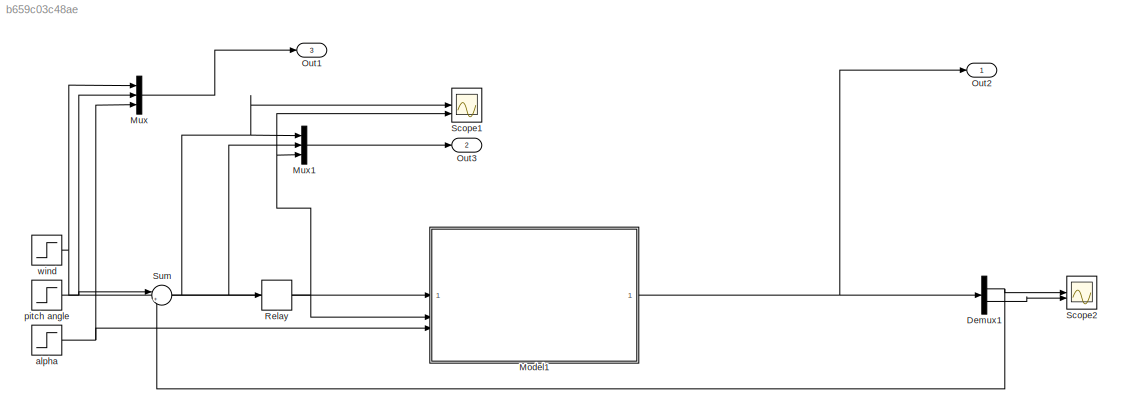
MODEL slx_b659c03c48ae
KIND model
CONFIG AbsTol = auto
CONFIG EnableMultiTasking = off
CONFIG FixedStep = auto
CONFIG MaxStep = auto
CONFIG MinStep = auto
CONFIG RelTol = 1e-3
CONFIG SampleTimeConstraint = Unconstrained
CONFIG SolverName = VariableStepAuto
CONFIG StartTime = 0.0
CONFIG StopTime = 400
BLOCK [Demux] Demux1
  Outputs = 2
BLOCK [ModelReference] Model1
  ModelNameDialog = transfer_function_structured.slx
  ModelReferenceVersion = 1.2
BLOCK [Mux] Mux
  DisplayOption = bar
  Inputs = 3
BLOCK [Mux] Mux1
  DisplayOption = bar
  Inputs = 3
BLOCK [Outport] Out1
  Port = 3
BLOCK [Outport] Out2
  SignalName = output
BLOCK [Outport] Out3
  Port = 2
BLOCK [Relay] Relay
  OffOutputValue = 1
  OffSwitchValue = -1
  OnOutputValue = -1
  OnSwitchValue = 1
BLOCK [Scope] Scope1
  Floating = off
  NumInputPorts = 3
  ScopeSpecificationString = Simulink.scopes.TimeScopeBlockCfg('CurrentConfiguration', extmgr.ConfigurationSet(extmgr.Configuration('Core','General UI',true),extmgr.Configuration('Core','Source UI',true),extmgr.Configuration('Sources','WiredSimulink',true,'DataLoggingVariableName','ScopeData1'),extmgr.Configuration('Visuals','Time Domain',true,'SerializedDisplays',{struct('MinYLimReal','-1.81496','MaxYLimReal','1.78967','YLab...<+3141ch>
BLOCK [Scope] Scope2
  Floating = off
  NumInputPorts = 2
  ScopeSpecificationString = Simulink.scopes.TimeScopeBlockCfg('CurrentConfiguration', extmgr.ConfigurationSet(extmgr.Configuration('Core','General UI',true),extmgr.Configuration('Core','Source UI',true),extmgr.Configuration('Sources','WiredSimulink',true),extmgr.Configuration('Visuals','Time Domain',true,'SerializedDisplays',{struct('MinYLimReal','-1.78967','MaxYLimReal','1.81496','YLabelReal','','MinYLimMag','0.00000','MaxY...<+2046ch>
BLOCK [Sum] Sum
  Inputs = |+-
BLOCK [Step] alpha
  After = 0
  SampleTime = 0
  Time = simP.step_time
BLOCK [Step] pitch angle
  After = 0
  SampleTime = 0
  Time = simP.step_time
BLOCK [Step] wind
  After = 0
  SampleTime = 0
  Time = simP.step_time
NET Demux1:1 -> Scope2:1, Sum:2
LINE Demux1:2 -> Scope2:2
NET Model1:1 -> Demux1:1, Out2:1
LINE Mux1:1 -> Out3:1
LINE Mux:1 -> Out1:1
NET Relay:1 -> Model1:2, Mux1:3, Scope1:3
NET Sum:1 -> Mux1:1, Mux1:2, Relay:1, Scope1:1
NET alpha:1 -> Model1:3, Mux:3
NET pitch angle:1 -> Mux:2, Sum:1
NET wind:1 -> Model1:1, Mux:1
note: NET lines group one-source signal fan-out (src -> all destinations, sorted); 1:1 wires keep LINE
